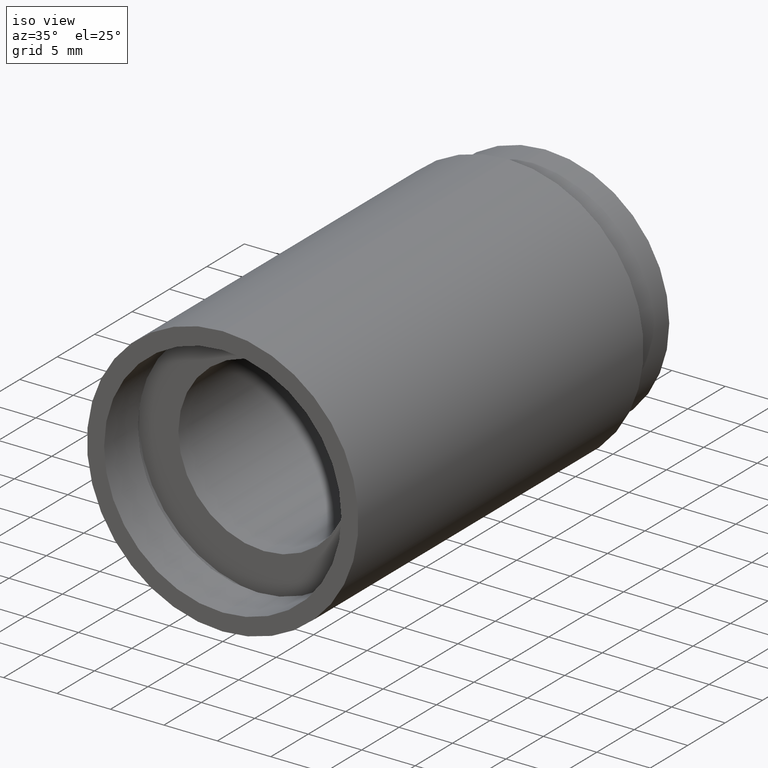
[diagram: clean part render]
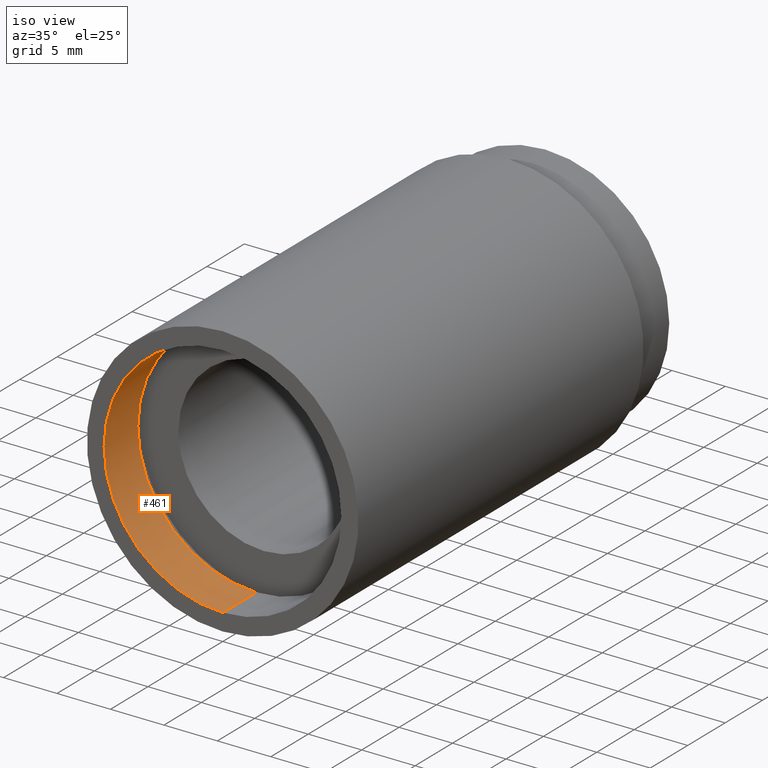
[diagram: same view with one face highlighted and labeled with its STEP entity id]
A machine part, iso view. The second image highlights one B-rep face of the part: STEP entity #461.
In plain terms, the highlighted cylindrical surface (partial cylindrical patch) has radius 11.1 mm, axis along (-0, 1, -0).
Its self-contained STEP definition (entity closure, byte-faithful):
#9 = DIRECTION ( 'NONE',  ( 0.0000000000000000000, 0.0000000000000000000, 1.000000000000000000 ) ) ;
#67 = DIRECTION ( 'NONE',  ( 0.0000000000000000000, 0.0000000000000000000, 1.000000000000000000 ) ) ;
#68 = VERTEX_POINT ( 'NONE', #202 ) ;
#84 = VERTEX_POINT ( 'NONE', #301 ) ;
#112 = EDGE_CURVE ( 'NONE', #84, #68, #165, .T. ) ;
#114 = ORIENTED_EDGE ( 'NONE', *, *, #378, .T. ) ;
#134 = AXIS2_PLACEMENT_3D ( 'NONE', #276, #230, #9 ) ;
#149 = VERTEX_POINT ( 'NONE', #575 ) ;
#165 = LINE ( 'NONE', #431, #568 ) ;
#171 = AXIS2_PLACEMENT_3D ( 'NONE', #176, #179, #67 ) ;
#173 = CARTESIAN_POINT ( 'NONE',  ( 1.359357947053564500E-015, 161.3761669434274500, -11.10000000000002100 ) ) ;
#176 = CARTESIAN_POINT ( 'NONE',  ( 0.0000000000000000000, -2.775557561562891400E-014, 0.0000000000000000000 ) ) ;
#179 = DIRECTION ( 'NONE',  ( -0.0000000000000000000, 1.000000000000000000, -0.0000000000000000000 ) ) ;
#184 = ORIENTED_EDGE ( 'NONE', *, *, #406, .T. ) ;
#192 = CYLINDRICAL_SURFACE ( 'NONE', #134, 11.10000000000002100 ) ;
#202 = CARTESIAN_POINT ( 'NONE',  ( 0.0000000000000000000, 4.499999999999976000, 11.10000000000001900 ) ) ;
#230 = DIRECTION ( 'NONE',  ( -0.0000000000000000000, 1.000000000000000000, -0.0000000000000000000 ) ) ;
#238 = VECTOR ( 'NONE', #454, 1000.000000000000000 ) ;
#276 = CARTESIAN_POINT ( 'NONE',  ( 0.0000000000000000000, 161.3761669434274500, 0.0000000000000000000 ) ) ;
#300 = ORIENTED_EDGE ( 'NONE', *, *, #112, .F. ) ;
#301 = CARTESIAN_POINT ( 'NONE',  ( 0.0000000000000000000, -2.775557561562891400E-014, 11.10000000000002300 ) ) ;
#315 = LINE ( 'NONE', #173, #238 ) ;
#355 = DIRECTION ( 'NONE',  ( -0.0000000000000000000, 1.000000000000000000, -0.0000000000000000000 ) ) ;
#370 = CIRCLE ( 'NONE', #171, 11.10000000000002300 ) ;
#373 = AXIS2_PLACEMENT_3D ( 'NONE', #407, #355, #408 ) ;
#378 = EDGE_CURVE ( 'NONE', #623, #68, #462, .T. ) ;
#390 = CARTESIAN_POINT ( 'NONE',  ( 1.359357947053564500E-015, 4.499999999999976000, -11.10000000000001900 ) ) ;
#391 = DIRECTION ( 'NONE',  ( -0.0000000000000000000, 1.000000000000000000, -0.0000000000000000000 ) ) ;
#402 = ORIENTED_EDGE ( 'NONE', *, *, #414, .F. ) ;
#406 = EDGE_CURVE ( 'NONE', #149, #623, #315, .T. ) ;
#407 = CARTESIAN_POINT ( 'NONE',  ( 0.0000000000000000000, 4.499999999999976000, 0.0000000000000000000 ) ) ;
#408 = DIRECTION ( 'NONE',  ( 0.0000000000000000000, 0.0000000000000000000, 1.000000000000000000 ) ) ;
#414 = EDGE_CURVE ( 'NONE', #149, #84, #370, .T. ) ;
#431 = CARTESIAN_POINT ( 'NONE',  ( 0.0000000000000000000, 161.3761669434274500, 11.10000000000002100 ) ) ;
#454 = DIRECTION ( 'NONE',  ( -0.0000000000000000000, 1.000000000000000000, -0.0000000000000000000 ) ) ;
#461 = ADVANCED_FACE ( 'NONE', ( #513 ), #192, .F. ) ;
#462 = CIRCLE ( 'NONE', #373, 11.10000000000001900 ) ;
#513 = FACE_OUTER_BOUND ( 'NONE', #622, .T. ) ;
#568 = VECTOR ( 'NONE', #391, 1000.000000000000000 ) ;
#575 = CARTESIAN_POINT ( 'NONE',  ( 1.359357947053564900E-015, -2.775557561562891400E-014, -11.10000000000002300 ) ) ;
#622 = EDGE_LOOP ( 'NONE', ( #402, #184, #114, #300 ) ) ;
#623 = VERTEX_POINT ( 'NONE', #390 ) ;